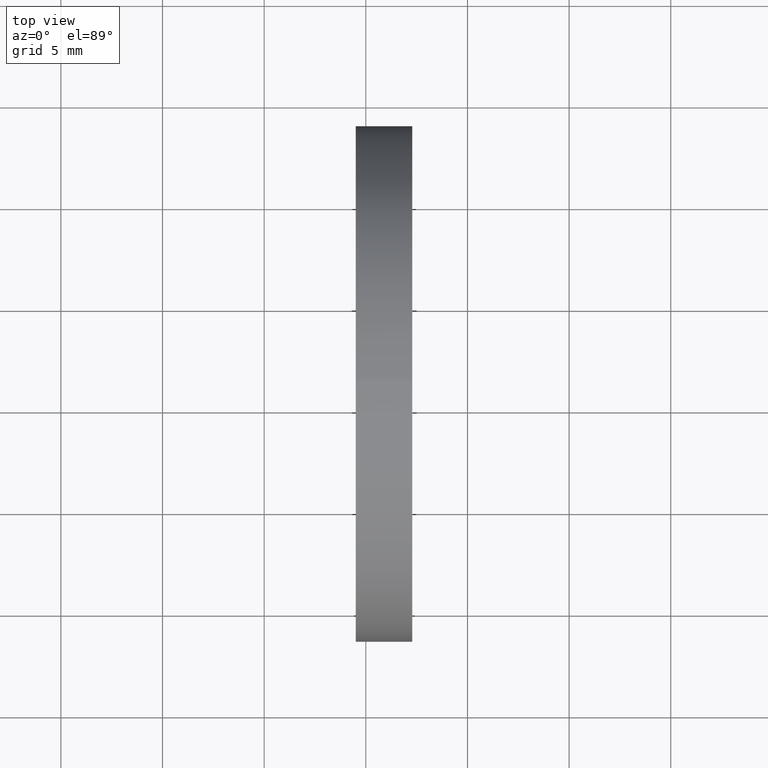
[diagram: clean part render]
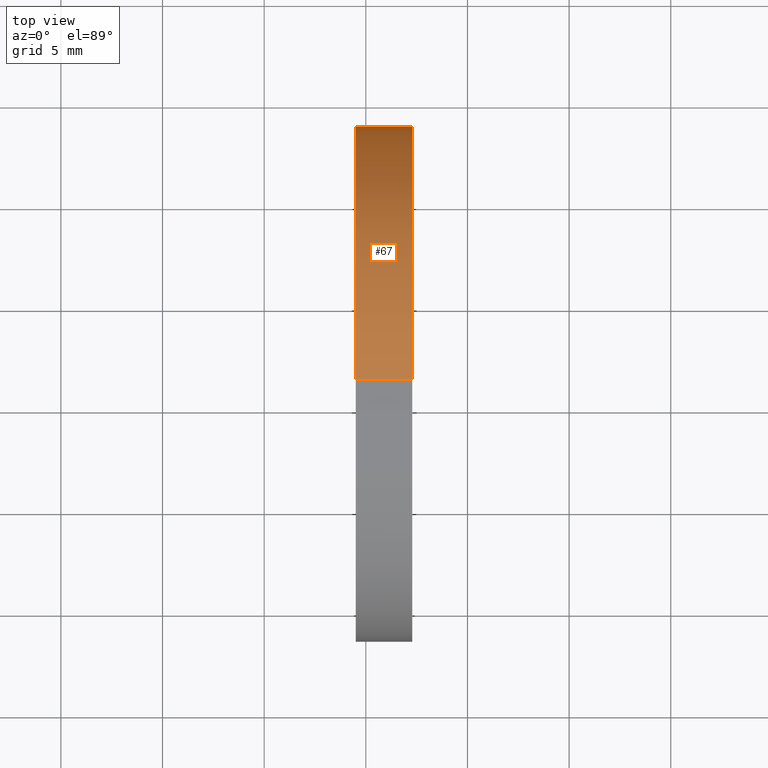
[diagram: same view with one face highlighted and labeled with its STEP entity id]
A machine part, top view. The second image highlights one B-rep face of the part: STEP entity #67.
In plain terms, the highlighted cylindrical surface (partial cylindrical patch) has radius 12.7 mm, axis along (-1, -0, -0).
Its self-contained STEP definition (entity closure, byte-faithful):
#5 = EDGE_CURVE ( 'NONE', #131, #114, #148, .T. ) ;
#8 = DIRECTION ( 'NONE',  ( -1.000000000000000000, -0.0000000000000000000, -0.0000000000000000000 ) ) ;
#11 = CIRCLE ( 'NONE', #162, 12.70000000000000300 ) ;
#12 = EDGE_CURVE ( 'NONE', #114, #44, #48, .T. ) ;
#14 = DIRECTION ( 'NONE',  ( 0.0000000000000000000, 0.0000000000000000000, 1.000000000000000000 ) ) ;
#20 = LINE ( 'NONE', #127, #103 ) ;
#28 = ORIENTED_EDGE ( 'NONE', *, *, #45, .F. ) ;
#29 = DIRECTION ( 'NONE',  ( -1.000000000000000000, -0.0000000000000000000, -0.0000000000000000000 ) ) ;
#30 = CARTESIAN_POINT ( 'NONE',  ( 111.9552297575605700, 71.19398908659370300, -12.70000000000000300 ) ) ;
#34 = VERTEX_POINT ( 'NONE', #122 ) ;
#35 = DIRECTION ( 'NONE',  ( 0.0000000000000000000, 0.0000000000000000000, 1.000000000000000000 ) ) ;
#39 = EDGE_LOOP ( 'NONE', ( #74, #120, #28, #94 ) ) ;
#42 = DIRECTION ( 'NONE',  ( 0.0000000000000000000, 0.0000000000000000000, 1.000000000000000000 ) ) ;
#44 = VERTEX_POINT ( 'NONE', #165 ) ;
#45 = EDGE_CURVE ( 'NONE', #34, #44, #11, .T. ) ;
#47 = CYLINDRICAL_SURFACE ( 'NONE', #86, 12.70000000000000300 ) ;
#48 = LINE ( 'NONE', #30, #145 ) ;
#55 = AXIS2_PLACEMENT_3D ( 'NONE', #109, #96, #42 ) ;
#67 = ADVANCED_FACE ( 'NONE', ( #166 ), #47, .T. ) ;
#70 = CARTESIAN_POINT ( 'NONE',  ( 122.2810793820639900, 71.19398908659370300, 12.70000000000004700 ) ) ;
#74 = ORIENTED_EDGE ( 'NONE', *, *, #5, .T. ) ;
#81 = CARTESIAN_POINT ( 'NONE',  ( 111.9552297575605700, 71.19398908659370300, 0.0000000000000000000 ) ) ;
#86 = AXIS2_PLACEMENT_3D ( 'NONE', #81, #135, #14 ) ;
#94 = ORIENTED_EDGE ( 'NONE', *, *, #157, .F. ) ;
#96 = DIRECTION ( 'NONE',  ( -1.000000000000000000, -0.0000000000000000000, -0.0000000000000000000 ) ) ;
#99 = DIRECTION ( 'NONE',  ( -1.000000000000000000, -0.0000000000000000000, -0.0000000000000000000 ) ) ;
#103 = VECTOR ( 'NONE', #8, 1000.000000000000000 ) ;
#109 = CARTESIAN_POINT ( 'NONE',  ( 122.2810793820639900, 71.19398908659370300, 0.0000000000000000000 ) ) ;
#114 = VERTEX_POINT ( 'NONE', #139 ) ;
#120 = ORIENTED_EDGE ( 'NONE', *, *, #12, .T. ) ;
#122 = CARTESIAN_POINT ( 'NONE',  ( 119.5068341785477100, 71.19398908659370300, 12.70000000000000300 ) ) ;
#127 = CARTESIAN_POINT ( 'NONE',  ( 111.9552297575605700, 71.19398908659370300, 12.70000000000000300 ) ) ;
#131 = VERTEX_POINT ( 'NONE', #70 ) ;
#135 = DIRECTION ( 'NONE',  ( -1.000000000000000000, -0.0000000000000000000, -0.0000000000000000000 ) ) ;
#139 = CARTESIAN_POINT ( 'NONE',  ( 122.2810793820639900, 71.19398908659370300, -12.70000000000004700 ) ) ;
#145 = VECTOR ( 'NONE', #29, 1000.000000000000000 ) ;
#148 = CIRCLE ( 'NONE', #55, 12.70000000000000300 ) ;
#150 = CARTESIAN_POINT ( 'NONE',  ( 119.5068341785477100, 71.19398908659370300, 0.0000000000000000000 ) ) ;
#157 = EDGE_CURVE ( 'NONE', #131, #34, #20, .T. ) ;
#162 = AXIS2_PLACEMENT_3D ( 'NONE', #150, #99, #35 ) ;
#165 = CARTESIAN_POINT ( 'NONE',  ( 119.5068341785477100, 71.19398908659370300, -12.70000000000000300 ) ) ;
#166 = FACE_OUTER_BOUND ( 'NONE', #39, .T. ) ;